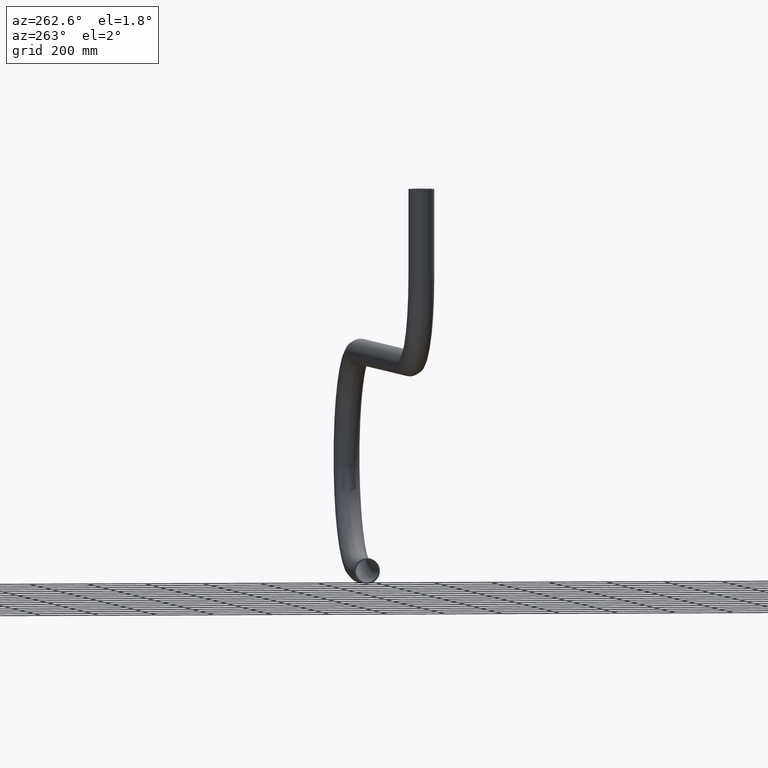
[diagram: clean part render]
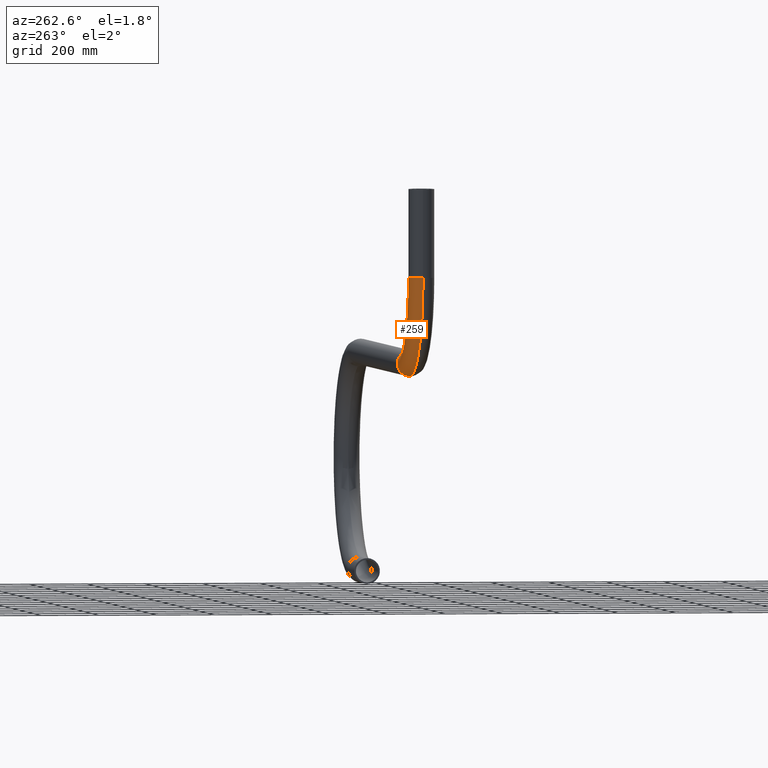
[diagram: same view with one face highlighted and labeled with its STEP entity id]
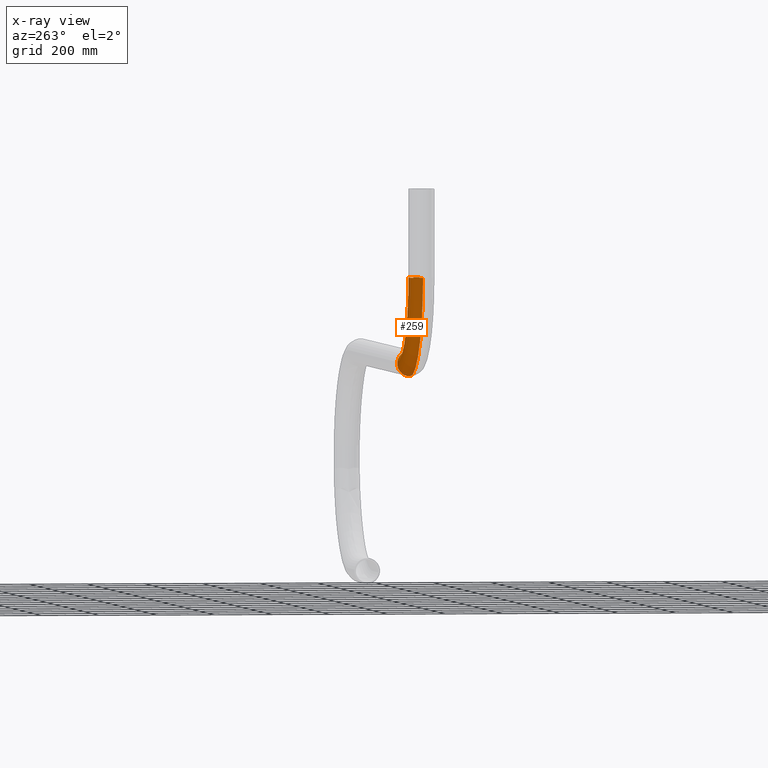
[diagram: x-ray of the same camera — body ghosted, the highlighted face saturated]
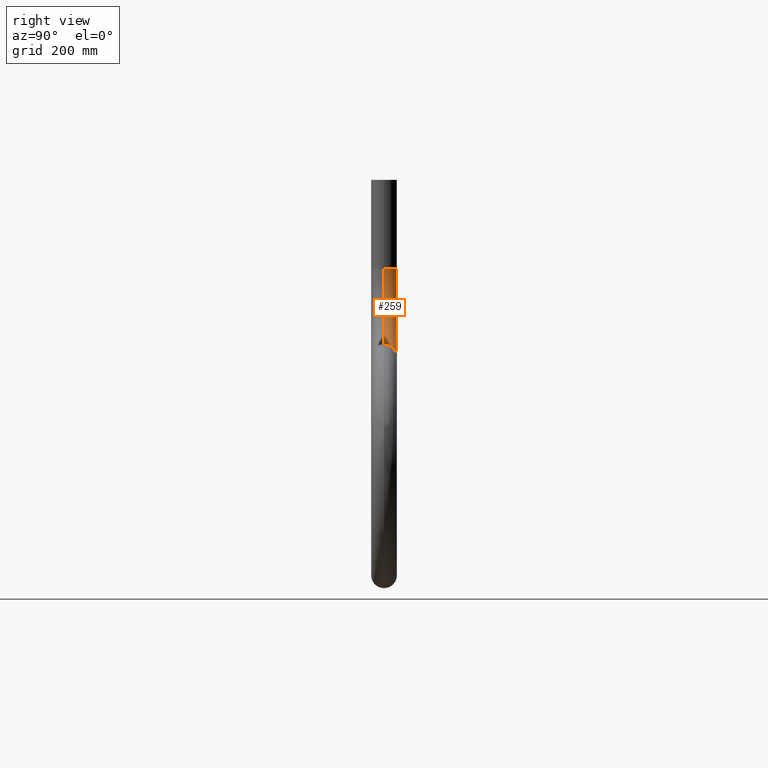
[diagram: same view with one face highlighted and labeled with its STEP entity id]
A machine part, auxiliary view. The second image highlights one B-rep face of the part: STEP entity #259.
The next image is the same camera in x-ray: the body ghosted, the highlighted face saturated — about 0% of this face is hidden behind the body in this view.
A second angle (right view) of the same face is appended — the face is thin or edge-on in the first view.
In plain terms, the highlighted toroidal blend (fillet) surface has major radius 305 mm and minor (blend) radius 44.45 mm.
Its self-contained STEP definition (entity closure, byte-faithful):
#11 = VERTEX_POINT ( 'NONE', #35 ) ;
#30 = DIRECTION ( 'NONE',  ( 0.000000000000000000, 0.000000000000000000, 1.000000000000000000 ) ) ;
#33 = TOROIDAL_SURFACE ( 'NONE', #581, 305.0000000000001137, 44.45000000000000995 ) ;
#35 = CARTESIAN_POINT ( 'NONE',  ( -659.5000000000000000, 0.000000000000000000, 44.45000000000000995 ) ) ;
#46 = EDGE_CURVE ( 'NONE', #404, #261, #394, .T. ) ;
#63 = AXIS2_PLACEMENT_3D ( 'NONE', #645, #334, #177 ) ;
#69 = ORIENTED_EDGE ( 'NONE', *, *, #78, .F. ) ;
#78 = EDGE_CURVE ( 'NONE', #11, #261, #476, .T. ) ;
#83 = CARTESIAN_POINT ( 'NONE',  ( -1008.950000000000045, 5.443555022209988853E-15, 305.0000000000001137 ) ) ;
#98 = CARTESIAN_POINT ( 'NONE',  ( -659.5000000000000000, 0.000000000000000000, 0.000000000000000000 ) ) ;
#101 = DIRECTION ( 'NONE',  ( 0.000000000000000000, 0.000000000000000000, -1.000000000000000000 ) ) ;
#105 = AXIS2_PLACEMENT_3D ( 'NONE', #640, #491, #183 ) ;
#160 = DIRECTION ( 'NONE',  ( 0.000000000000000000, 0.000000000000000000, 1.000000000000000000 ) ) ;
#162 = EDGE_CURVE ( 'NONE', #459, #11, #637, .T. ) ;
#177 = DIRECTION ( 'NONE',  ( -1.000000000000000000, 0.000000000000000000, 0.000000000000000000 ) ) ;
#183 = DIRECTION ( 'NONE',  ( 0.000000000000000000, 0.000000000000000000, 1.000000000000000000 ) ) ;
#201 = CIRCLE ( 'NONE', #373, 349.4500000000001023 ) ;
#205 = CARTESIAN_POINT ( 'NONE',  ( -659.4999999999998863, 0.000000000000000000, 305.0000000000001137 ) ) ;
#211 = AXIS2_PLACEMENT_3D ( 'NONE', #98, #298, #101 ) ;
#213 = DIRECTION ( 'NONE',  ( -0.000000000000000000, 1.000000000000000000, -0.000000000000000000 ) ) ;
#256 = FACE_OUTER_BOUND ( 'NONE', #608, .T. ) ;
#259 = ADVANCED_FACE ( 'NONE', ( #256 ), #33, .T. ) ;
#261 = VERTEX_POINT ( 'NONE', #514 ) ;
#281 = CARTESIAN_POINT ( 'NONE',  ( -659.4999999999998863, 0.000000000000000000, 305.0000000000001137 ) ) ;
#298 = DIRECTION ( 'NONE',  ( 1.000000000000000000, 0.000000000000000000, -1.820037745287141918E-16 ) ) ;
#334 = DIRECTION ( 'NONE',  ( -2.465190328815661892E-32, 0.000000000000000000, -1.000000000000000000 ) ) ;
#343 = ORIENTED_EDGE ( 'NONE', *, *, #162, .F. ) ;
#373 = AXIS2_PLACEMENT_3D ( 'NONE', #281, #483, #30 ) ;
#374 = ORIENTED_EDGE ( 'NONE', *, *, #512, .T. ) ;
#394 = CIRCLE ( 'NONE', #63, 44.44999999999998863 ) ;
#401 = ORIENTED_EDGE ( 'NONE', *, *, #46, .T. ) ;
#404 = VERTEX_POINT ( 'NONE', #83 ) ;
#436 = CARTESIAN_POINT ( 'NONE',  ( -659.5000000000000000, 5.443555022209989642E-15, -44.45000000000000995 ) ) ;
#459 = VERTEX_POINT ( 'NONE', #436 ) ;
#476 = CIRCLE ( 'NONE', #105, 260.5500000000001251 ) ;
#483 = DIRECTION ( 'NONE',  ( -0.000000000000000000, 1.000000000000000000, -0.000000000000000000 ) ) ;
#491 = DIRECTION ( 'NONE',  ( -0.000000000000000000, 1.000000000000000000, -0.000000000000000000 ) ) ;
#512 = EDGE_CURVE ( 'NONE', #459, #404, #201, .T. ) ;
#514 = CARTESIAN_POINT ( 'NONE',  ( -920.0500000000000682, 0.000000000000000000, 305.0000000000001137 ) ) ;
#581 = AXIS2_PLACEMENT_3D ( 'NONE', #205, #213, #160 ) ;
#608 = EDGE_LOOP ( 'NONE', ( #343, #374, #401, #69 ) ) ;
#637 = CIRCLE ( 'NONE', #211, 44.45000000000000995 ) ;
#640 = CARTESIAN_POINT ( 'NONE',  ( -659.4999999999998863, -5.443555022209986486E-15, 305.0000000000001137 ) ) ;
#645 = CARTESIAN_POINT ( 'NONE',  ( -964.5000000000000000, 0.000000000000000000, 305.0000000000001137 ) ) ;